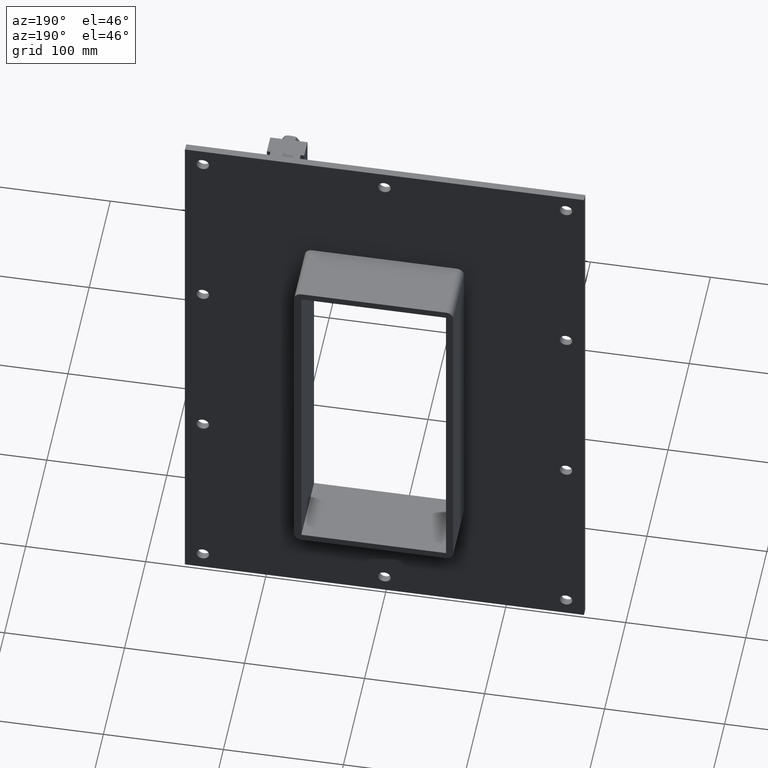
[diagram: clean part render]
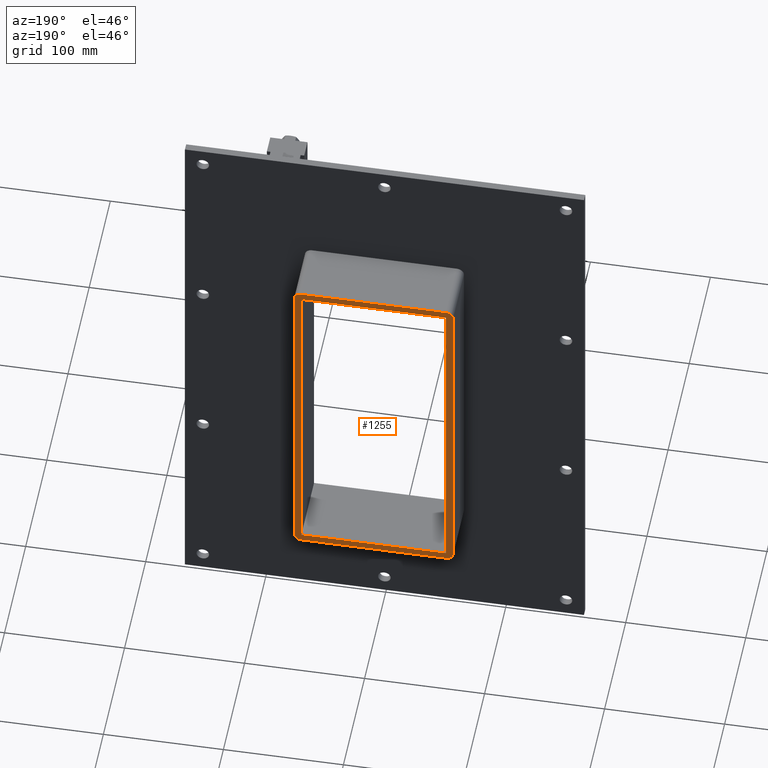
[diagram: same view with one face highlighted and labeled with its STEP entity id]
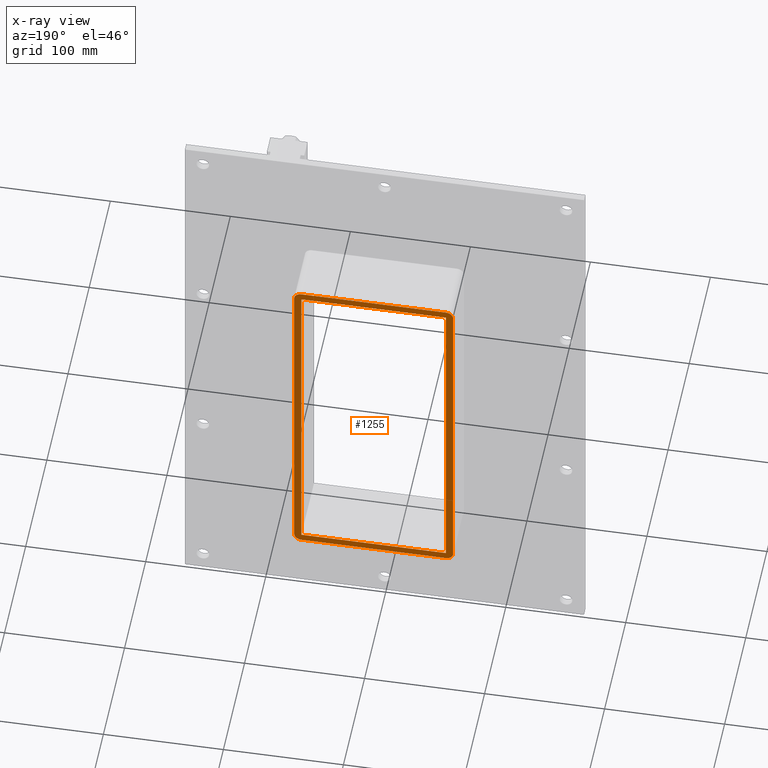
[diagram: x-ray of the same camera — body ghosted, the highlighted face saturated]
A machine part, auxiliary view. The second image highlights one B-rep face of the part: STEP entity #1255.
The next image is the same camera in x-ray: the body ghosted, the highlighted face saturated — about 0% of this face is hidden behind the body in this view.
In plain terms, the highlighted planar face has unit normal (0, 1, 0).
Its self-contained STEP definition (entity closure, byte-faithful):
#703=CARTESIAN_POINT('',(-60.249999999999993,57.0,-139.0));
#704=VERTEX_POINT('',#703);
#711=CARTESIAN_POINT('',(-60.249999999999993,57.0,139.00000000000003));
#712=VERTEX_POINT('',#711);
#713=CARTESIAN_POINT('',(-60.249999999999993,57.0,139.0));
#714=DIRECTION('',(0.0,0.0,-1.0));
#715=VECTOR('',#714,278.0);
#716=LINE('',#713,#715);
#717=EDGE_CURVE('',#712,#704,#716,.T.);
#774=CARTESIAN_POINT('',(60.25,57.0,-145.0));
#775=VERTEX_POINT('',#774);
#782=CARTESIAN_POINT('',(66.25,57.0,-139.0));
#783=VERTEX_POINT('',#782);
#784=CARTESIAN_POINT('',(60.25,57.0,-139.0));
#785=DIRECTION('',(0.0,-1.0,0.0));
#786=DIRECTION('',(0.707106781186546,0.0,-0.707106781186549));
#787=AXIS2_PLACEMENT_3D('',#784,#785,#786);
#788=CIRCLE('',#787,6.000000000000001);
#789=EDGE_CURVE('',#775,#783,#788,.T.);
#830=CARTESIAN_POINT('',(-60.25,57.0,-145.0));
#831=VERTEX_POINT('',#830);
#838=CARTESIAN_POINT('',(60.25,57.0,-145.0));
#839=DIRECTION('',(-1.0,0.0,0.0));
#840=VECTOR('',#839,120.5);
#841=LINE('',#838,#840);
#842=EDGE_CURVE('',#775,#831,#841,.T.);
#903=CARTESIAN_POINT('',(-66.25,57.0,-139.0));
#904=VERTEX_POINT('',#903);
#911=CARTESIAN_POINT('',(-60.25,57.0,-139.0));
#912=DIRECTION('',(0.0,-1.0,0.0));
#913=DIRECTION('',(-0.707106781186546,0.0,-0.707106781186549));
#914=AXIS2_PLACEMENT_3D('',#911,#912,#913);
#915=CIRCLE('',#914,6.000000000000001);
#916=EDGE_CURVE('',#904,#831,#915,.T.);
#977=CARTESIAN_POINT('',(-66.25,57.0,139.0));
#978=VERTEX_POINT('',#977);
#985=CARTESIAN_POINT('',(-66.25,57.0,-139.0));
#986=DIRECTION('',(0.0,0.0,1.0));
#987=VECTOR('',#986,278.0);
#988=LINE('',#985,#987);
#989=EDGE_CURVE('',#904,#978,#988,.T.);
#1084=CARTESIAN_POINT('',(-60.25,57.0,145.0));
#1085=VERTEX_POINT('',#1084);
#1092=CARTESIAN_POINT('',(-60.25,57.0,139.0));
#1093=DIRECTION('',(0.0,-1.0,0.0));
#1094=DIRECTION('',(-0.707106781186546,0.0,0.707106781186549));
#1095=AXIS2_PLACEMENT_3D('',#1092,#1093,#1094);
#1096=CIRCLE('',#1095,6.000000000000001);
#1097=EDGE_CURVE('',#1085,#978,#1096,.T.);
#1109=CARTESIAN_POINT('',(60.25,57.0,145.0));
#1110=VERTEX_POINT('',#1109);
#1117=CARTESIAN_POINT('',(-60.25,57.0,145.0));
#1118=DIRECTION('',(1.0,0.0,0.0));
#1119=VECTOR('',#1118,120.5);
#1120=LINE('',#1117,#1119);
#1121=EDGE_CURVE('',#1085,#1110,#1120,.T.);
#1133=CARTESIAN_POINT('',(66.25,57.0,139.0));
#1134=VERTEX_POINT('',#1133);
#1141=CARTESIAN_POINT('',(60.25,57.0,139.0));
#1142=DIRECTION('',(0.0,-1.0,0.0));
#1143=DIRECTION('',(0.707106781186548,0.0,0.707106781186547));
#1144=AXIS2_PLACEMENT_3D('',#1141,#1142,#1143);
#1145=CIRCLE('',#1144,6.0);
#1146=EDGE_CURVE('',#1134,#1110,#1145,.T.);
#1159=CARTESIAN_POINT('',(66.25,57.0,139.0));
#1160=DIRECTION('',(0.0,0.0,-1.0));
#1161=VECTOR('',#1160,278.0);
#1162=LINE('',#1159,#1161);
#1163=EDGE_CURVE('',#1134,#783,#1162,.T.);
#1174=CARTESIAN_POINT('',(60.249999999999993,57.0,-139.0));
#1175=VERTEX_POINT('',#1174);
#1183=CARTESIAN_POINT('',(60.249999999999993,57.0,139.00000000000003));
#1184=VERTEX_POINT('',#1183);
#1191=CARTESIAN_POINT('',(60.249999999999993,57.0,-139.0));
#1192=DIRECTION('',(0.0,0.0,1.0));
#1193=VECTOR('',#1192,278.0);
#1194=LINE('',#1191,#1193);
#1195=EDGE_CURVE('',#1175,#1184,#1194,.T.);
#1206=CARTESIAN_POINT('',(60.25,57.0,139.00000000000003));
#1207=DIRECTION('',(-1.0,0.0,0.0));
#1208=VECTOR('',#1207,120.5);
#1209=LINE('',#1206,#1208);
#1210=EDGE_CURVE('',#1184,#712,#1209,.T.);
#1225=CARTESIAN_POINT('',(-60.25,57.0,-139.0));
#1226=DIRECTION('',(1.0,0.0,0.0));
#1227=VECTOR('',#1226,120.5);
#1228=LINE('',#1225,#1227);
#1229=EDGE_CURVE('',#704,#1175,#1228,.T.);
#1234=CARTESIAN_POINT('',(0.0,57.0,0.0));
#1235=DIRECTION('',(0.0,1.0,0.0));
#1236=DIRECTION('',(0.0,0.0,1.0));
#1237=AXIS2_PLACEMENT_3D('',#1234,#1235,#1236);
#1238=PLANE('',#1237);
#1239=ORIENTED_EDGE('',*,*,#916,.F.);
#1240=ORIENTED_EDGE('',*,*,#989,.T.);
#1241=ORIENTED_EDGE('',*,*,#1097,.F.);
#1242=ORIENTED_EDGE('',*,*,#1121,.T.);
#1243=ORIENTED_EDGE('',*,*,#1146,.F.);
#1244=ORIENTED_EDGE('',*,*,#1163,.T.);
#1245=ORIENTED_EDGE('',*,*,#789,.F.);
#1246=ORIENTED_EDGE('',*,*,#842,.T.);
#1247=EDGE_LOOP('',(#1239,#1240,#1241,#1242,#1243,#1244,#1245,#1246));
#1248=FACE_OUTER_BOUND('',#1247,.T.);
#1249=ORIENTED_EDGE('',*,*,#1195,.T.);
#1250=ORIENTED_EDGE('',*,*,#1210,.T.);
#1251=ORIENTED_EDGE('',*,*,#717,.T.);
#1252=ORIENTED_EDGE('',*,*,#1229,.T.);
#1253=EDGE_LOOP('',(#1249,#1250,#1251,#1252));
#1254=FACE_BOUND('',#1253,.T.);
#1255=ADVANCED_FACE('',(#1248,#1254),#1238,.T.);